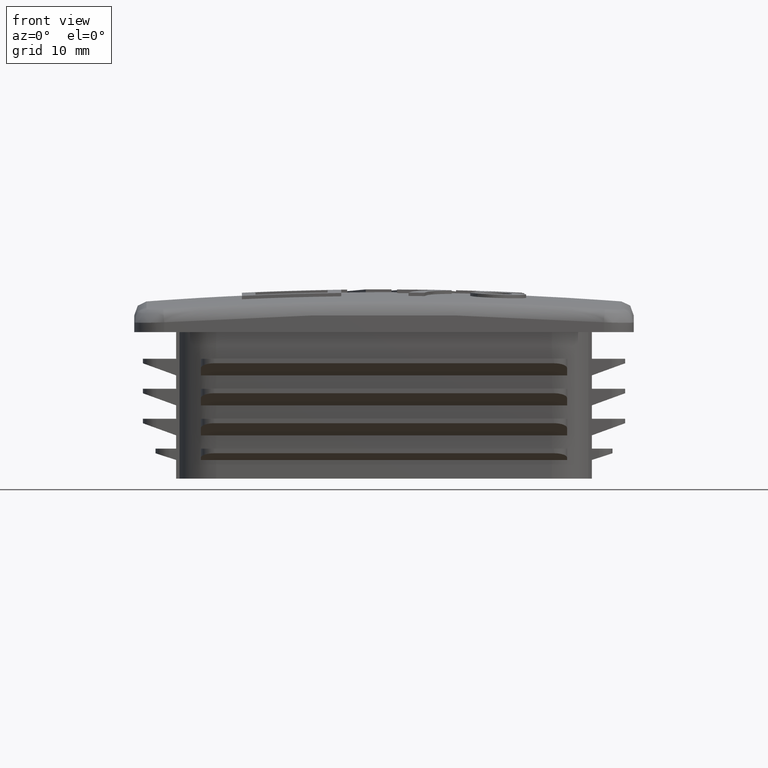
[diagram: clean part render]
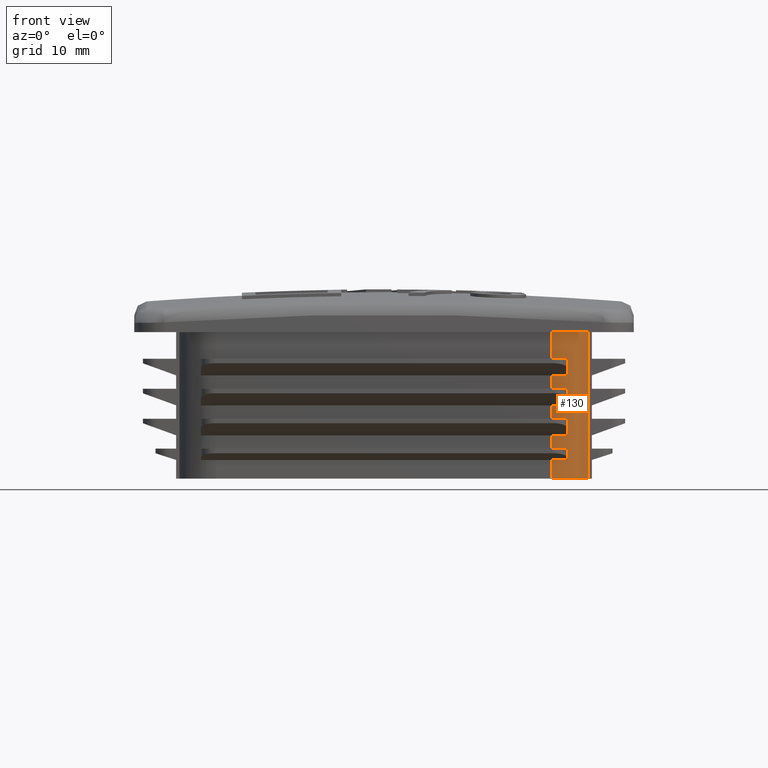
[diagram: same view with one face highlighted and labeled with its STEP entity id]
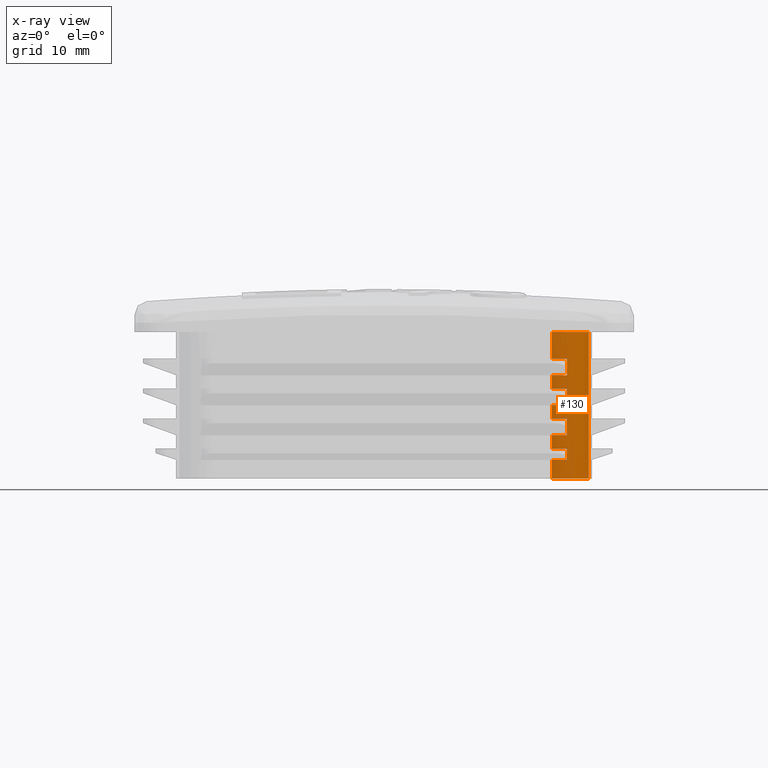
[diagram: x-ray of the same camera — body ghosted, the highlighted face saturated]
A machine part, front view. The second image highlights one B-rep face of the part: STEP entity #130.
The next image is the same camera in x-ray: the body ghosted, the highlighted face saturated — about 0% of this face is hidden behind the body in this view.
In plain terms, the highlighted cylindrical surface (partial cylindrical patch) has radius 6 mm, axis along (0, 0, -1).
Its self-contained STEP definition (entity closure, byte-faithful):
#130 = ADVANCED_FACE( '', ( #448 ), #449, .T. );
#448 = FACE_OUTER_BOUND( '', #2968, .T. );
#449 = CYLINDRICAL_SURFACE( '', #2969, 6.00000000000000 );
#2968 = EDGE_LOOP( '', ( #3984, #3985, #3986, #3987, #3988, #3989, #3990, #3991, #3992, #3993, #3994, #3995, #3996, #3997, #3998, #3999, #4000, #4001, #4002, #4003 ) );
#2969 = AXIS2_PLACEMENT_3D( '', #4004, #4005, #4006 );
#3984 = ORIENTED_EDGE( '', *, *, #5804, .F. );
#3985 = ORIENTED_EDGE( '', *, *, #5767, .F. );
#3986 = ORIENTED_EDGE( '', *, *, #5805, .F. );
#3987 = ORIENTED_EDGE( '', *, *, #5806, .F. );
#3988 = ORIENTED_EDGE( '', *, *, #5807, .T. );
#3989 = ORIENTED_EDGE( '', *, *, #5808, .F. );
#3990 = ORIENTED_EDGE( '', *, *, #5809, .F. );
#3991 = ORIENTED_EDGE( '', *, *, #5810, .F. );
#3992 = ORIENTED_EDGE( '', *, *, #5811, .T. );
#3993 = ORIENTED_EDGE( '', *, *, #5812, .F. );
#3994 = ORIENTED_EDGE( '', *, *, #5813, .F. );
#3995 = ORIENTED_EDGE( '', *, *, #5814, .F. );
#3996 = ORIENTED_EDGE( '', *, *, #5815, .T. );
#3997 = ORIENTED_EDGE( '', *, *, #5816, .F. );
#3998 = ORIENTED_EDGE( '', *, *, #5817, .F. );
#3999 = ORIENTED_EDGE( '', *, *, #5818, .F. );
#4000 = ORIENTED_EDGE( '', *, *, #5819, .T. );
#4001 = ORIENTED_EDGE( '', *, *, #5820, .F. );
#4002 = ORIENTED_EDGE( '', *, *, #5803, .F. );
#4003 = ORIENTED_EDGE( '', *, *, #5557, .T. );
#4004 = CARTESIAN_POINT( '', ( 25.2000000000000, -25.2000000000000, 0.000000000000000 ) );
#4005 = DIRECTION( '', ( 0.000000000000000, 0.000000000000000, -1.00000000000000 ) );
#4006 = DIRECTION( '', ( 0.000000000000000, -1.00000000000000, 0.000000000000000 ) );
#5557 = EDGE_CURVE( '', #6251, #6249, #6252, .T. );
#5767 = EDGE_CURVE( '', #6624, #6626, #6627, .T. );
#5803 = EDGE_CURVE( '', #6251, #6680, #6684, .T. );
#5804 = EDGE_CURVE( '', #6626, #6249, #6685, .T. );
#5805 = EDGE_CURVE( '', #6686, #6624, #6687, .T. );
#5806 = EDGE_CURVE( '', #6688, #6686, #6689, .F. );
#5807 = EDGE_CURVE( '', #6688, #6690, #6691, .F. );
#5808 = EDGE_CURVE( '', #6692, #6690, #6693, .F. );
#5809 = EDGE_CURVE( '', #6694, #6692, #6695, .T. );
#5810 = EDGE_CURVE( '', #6696, #6694, #6697, .F. );
#5811 = EDGE_CURVE( '', #6696, #6698, #6699, .F. );
#5812 = EDGE_CURVE( '', #6700, #6698, #6701, .F. );
#5813 = EDGE_CURVE( '', #6702, #6700, #6703, .T. );
#5814 = EDGE_CURVE( '', #6704, #6702, #6705, .F. );
#5815 = EDGE_CURVE( '', #6704, #6706, #6707, .F. );
#5816 = EDGE_CURVE( '', #6708, #6706, #6709, .F. );
#5817 = EDGE_CURVE( '', #6710, #6708, #6711, .T. );
#5818 = EDGE_CURVE( '', #6712, #6710, #6713, .F. );
#5819 = EDGE_CURVE( '', #6712, #6714, #6715, .F. );
#5820 = EDGE_CURVE( '', #6680, #6714, #6716, .F. );
#6249 = VERTEX_POINT( '', #7367 );
#6251 = VERTEX_POINT( '', #7370 );
#6252 = CIRCLE( '', #7371, 6.00000000000000 );
#6624 = VERTEX_POINT( '', #9206 );
#6626 = VERTEX_POINT( '', #9209 );
#6627 = CIRCLE( '', #9210, 6.00000000000000 );
#6680 = VERTEX_POINT( '', #9434 );
#6684 = LINE( '', #9440, #9441 );
#6685 = LINE( '', #9442, #9443 );
#6686 = VERTEX_POINT( '', #9444 );
#6687 = LINE( '', #9445, #9446 );
#6688 = VERTEX_POINT( '', #9447 );
#6689 = CIRCLE( '', #9448, 6.00000000000000 );
#6690 = VERTEX_POINT( '', #9449 );
#6691 = LINE( '', #9450, #9451 );
#6692 = VERTEX_POINT( '', #9452 );
#6693 = CIRCLE( '', #9453, 6.00000000000000 );
#6694 = VERTEX_POINT( '', #9454 );
#6695 = LINE( '', #9455, #9456 );
#6696 = VERTEX_POINT( '', #9457 );
#6697 = CIRCLE( '', #9458, 6.00000000000000 );
#6698 = VERTEX_POINT( '', #9459 );
#6699 = LINE( '', #9460, #9461 );
#6700 = VERTEX_POINT( '', #9462 );
#6701 = CIRCLE( '', #9463, 6.00000000000000 );
#6702 = VERTEX_POINT( '', #9464 );
#6703 = LINE( '', #9465, #9466 );
#6704 = VERTEX_POINT( '', #9467 );
#6705 = CIRCLE( '', #9468, 6.00000000000000 );
#6706 = VERTEX_POINT( '', #9469 );
#6707 = LINE( '', #9470, #9471 );
#6708 = VERTEX_POINT( '', #9472 );
#6709 = CIRCLE( '', #9473, 6.00000000000000 );
#6710 = VERTEX_POINT( '', #9474 );
#6711 = LINE( '', #9475, #9476 );
#6712 = VERTEX_POINT( '', #9477 );
#6713 = CIRCLE( '', #9478, 6.00000000000000 );
#6714 = VERTEX_POINT( '', #9479 );
#6715 = LINE( '', #9480, #9481 );
#6716 = CIRCLE( '', #9482, 6.00000000000000 );
#7367 = CARTESIAN_POINT( '', ( 30.7000000000000, -27.5979157616563, 0.000000000000000 ) );
#7370 = CARTESIAN_POINT( '', ( 25.2000000000000, -31.2000000000000, 0.000000000000000 ) );
#7371 = AXIS2_PLACEMENT_3D( '', #10595, #10596, #10597 );
#9206 = CARTESIAN_POINT( '', ( 25.2000000000000, -31.2000000000000, 22.0000000000000 ) );
#9209 = CARTESIAN_POINT( '', ( 30.7000000000000, -27.5979157616563, 22.0000000000000 ) );
#9210 = AXIS2_PLACEMENT_3D( '', #10777, #10778, #10779 );
#9434 = CARTESIAN_POINT( '', ( 25.2000000000000, -31.2000000000000, 2.79999999999999 ) );
#9440 = CARTESIAN_POINT( '', ( 25.2000000000000, -31.2000000000000, 0.000000000000000 ) );
#9441 = VECTOR( '', #10805, 1000.00000000000 );
#9442 = CARTESIAN_POINT( '', ( 30.7000000000000, -27.5979157616563, 22.0000000000000 ) );
#9443 = VECTOR( '', #10806, 1000.00000000000 );
#9444 = CARTESIAN_POINT( '', ( 25.2000000000000, -31.2000000000000, 18.0000000000000 ) );
#9445 = CARTESIAN_POINT( '', ( 25.2000000000000, -31.2000000000000, 0.000000000000000 ) );
#9446 = VECTOR( '', #10807, 1000.00000000000 );
#9447 = CARTESIAN_POINT( '', ( 27.5000000000000, -30.7416604009990, 18.0000000000000 ) );
#9448 = AXIS2_PLACEMENT_3D( '', #10808, #10809, #10810 );
#9449 = CARTESIAN_POINT( '', ( 27.5000000000000, -30.7416604009990, 15.5000000000000 ) );
#9450 = CARTESIAN_POINT( '', ( 27.5000000000000, -30.7416604009990, 0.000000000000000 ) );
#9451 = VECTOR( '', #10811, 1000.00000000000 );
#9452 = CARTESIAN_POINT( '', ( 25.2000000000000, -31.2000000000000, 15.5000000000000 ) );
#9453 = AXIS2_PLACEMENT_3D( '', #10812, #10813, #10814 );
#9454 = CARTESIAN_POINT( '', ( 25.2000000000000, -31.2000000000000, 13.5000000000000 ) );
#9455 = CARTESIAN_POINT( '', ( 25.2000000000000, -31.2000000000000, 0.000000000000000 ) );
#9456 = VECTOR( '', #10815, 1000.00000000000 );
#9457 = CARTESIAN_POINT( '', ( 27.5000000000000, -30.7416604009990, 13.5000000000000 ) );
#9458 = AXIS2_PLACEMENT_3D( '', #10816, #10817, #10818 );
#9459 = CARTESIAN_POINT( '', ( 27.5000000000000, -30.7416604009990, 11.0000000000000 ) );
#9460 = CARTESIAN_POINT( '', ( 27.5000000000000, -30.7416604009990, 0.000000000000000 ) );
#9461 = VECTOR( '', #10819, 1000.00000000000 );
#9462 = CARTESIAN_POINT( '', ( 25.2000000000000, -31.2000000000000, 11.0000000000000 ) );
#9463 = AXIS2_PLACEMENT_3D( '', #10820, #10821, #10822 );
#9464 = CARTESIAN_POINT( '', ( 25.2000000000000, -31.2000000000000, 9.00000000000000 ) );
#9465 = CARTESIAN_POINT( '', ( 25.2000000000000, -31.2000000000000, 0.000000000000000 ) );
#9466 = VECTOR( '', #10823, 1000.00000000000 );
#9467 = CARTESIAN_POINT( '', ( 27.5000000000000, -30.7416604009990, 9.00000000000000 ) );
#9468 = AXIS2_PLACEMENT_3D( '', #10824, #10825, #10826 );
#9469 = CARTESIAN_POINT( '', ( 27.5000000000000, -30.7416604009990, 6.49999999999999 ) );
#9470 = CARTESIAN_POINT( '', ( 27.5000000000000, -30.7416604009990, 0.000000000000000 ) );
#9471 = VECTOR( '', #10827, 1000.00000000000 );
#9472 = CARTESIAN_POINT( '', ( 25.2000000000000, -31.2000000000000, 6.49999999999998 ) );
#9473 = AXIS2_PLACEMENT_3D( '', #10828, #10829, #10830 );
#9474 = CARTESIAN_POINT( '', ( 25.2000000000000, -31.2000000000000, 4.50000000000000 ) );
#9475 = CARTESIAN_POINT( '', ( 25.2000000000000, -31.2000000000000, 0.000000000000000 ) );
#9476 = VECTOR( '', #10831, 1000.00000000000 );
#9477 = CARTESIAN_POINT( '', ( 27.5000000000000, -30.7416604009990, 4.50000000000000 ) );
#9478 = AXIS2_PLACEMENT_3D( '', #10832, #10833, #10834 );
#9479 = CARTESIAN_POINT( '', ( 27.5000000000000, -30.7416604009990, 2.80000000000000 ) );
#9480 = CARTESIAN_POINT( '', ( 27.5000000000000, -30.7416604009990, 0.000000000000000 ) );
#9481 = VECTOR( '', #10835, 1000.00000000000 );
#9482 = AXIS2_PLACEMENT_3D( '', #10836, #10837, #10838 );
#10595 = CARTESIAN_POINT( '', ( 25.2000000000000, -25.2000000000000, 0.000000000000000 ) );
#10596 = DIRECTION( '', ( 0.000000000000000, 0.000000000000000, 1.00000000000000 ) );
#10597 = DIRECTION( '', ( 0.000000000000000, -1.00000000000000, 0.000000000000000 ) );
#10777 = CARTESIAN_POINT( '', ( 25.2000000000000, -25.2000000000000, 22.0000000000000 ) );
#10778 = DIRECTION( '', ( 0.000000000000000, 0.000000000000000, 1.00000000000000 ) );
#10779 = DIRECTION( '', ( 0.000000000000000, -1.00000000000000, 0.000000000000000 ) );
#10805 = DIRECTION( '', ( 0.000000000000000, 0.000000000000000, 1.00000000000000 ) );
#10806 = DIRECTION( '', ( 0.000000000000000, 0.000000000000000, -1.00000000000000 ) );
#10807 = DIRECTION( '', ( 0.000000000000000, 0.000000000000000, 1.00000000000000 ) );
#10808 = CARTESIAN_POINT( '', ( 25.2000000000000, -25.2000000000000, 18.0000000000000 ) );
#10809 = DIRECTION( '', ( 1.02385407644591E-031, 6.12303176911189E-017, 1.00000000000000 ) );
#10810 = DIRECTION( '', ( 0.000000000000000, -1.00000000000000, 6.12303176911189E-017 ) );
#10811 = DIRECTION( '', ( 0.000000000000000, 0.000000000000000, 1.00000000000000 ) );
#10812 = CARTESIAN_POINT( '', ( 25.2000000000000, -25.2000000000000, 15.5000000000000 ) );
#10813 = DIRECTION( '', ( -1.02385407644591E-031, -6.12303176911189E-017, -1.00000000000000 ) );
#10814 = DIRECTION( '', ( 0.000000000000000, 1.00000000000000, -6.12303176911189E-017 ) );
#10815 = DIRECTION( '', ( 0.000000000000000, 0.000000000000000, 1.00000000000000 ) );
#10816 = CARTESIAN_POINT( '', ( 25.2000000000000, -25.2000000000000, 13.5000000000000 ) );
#10817 = DIRECTION( '', ( 1.02385407644591E-031, 6.12303176911189E-017, 1.00000000000000 ) );
#10818 = DIRECTION( '', ( 0.000000000000000, -1.00000000000000, 6.12303176911189E-017 ) );
#10819 = DIRECTION( '', ( 0.000000000000000, 0.000000000000000, 1.00000000000000 ) );
#10820 = CARTESIAN_POINT( '', ( 25.2000000000000, -25.2000000000000, 11.0000000000000 ) );
#10821 = DIRECTION( '', ( -1.02385407644591E-031, -6.12303176911189E-017, -1.00000000000000 ) );
#10822 = DIRECTION( '', ( 0.000000000000000, 1.00000000000000, -6.12303176911189E-017 ) );
#10823 = DIRECTION( '', ( 0.000000000000000, 0.000000000000000, 1.00000000000000 ) );
#10824 = CARTESIAN_POINT( '', ( 25.2000000000000, -25.2000000000000, 9.00000000000000 ) );
#10825 = DIRECTION( '', ( 1.02385407644591E-031, 6.12303176911189E-017, 1.00000000000000 ) );
#10826 = DIRECTION( '', ( 0.000000000000000, -1.00000000000000, 6.12303176911189E-017 ) );
#10827 = DIRECTION( '', ( 0.000000000000000, 0.000000000000000, 1.00000000000000 ) );
#10828 = CARTESIAN_POINT( '', ( 25.2000000000000, -25.2000000000000, 6.50000000000000 ) );
#10829 = DIRECTION( '', ( -1.02385407644591E-031, -6.12303176911189E-017, -1.00000000000000 ) );
#10830 = DIRECTION( '', ( 0.000000000000000, 1.00000000000000, -6.12303176911189E-017 ) );
#10831 = DIRECTION( '', ( 0.000000000000000, 0.000000000000000, 1.00000000000000 ) );
#10832 = CARTESIAN_POINT( '', ( 25.2000000000000, -25.2000000000000, 4.50000000000000 ) );
#10833 = DIRECTION( '', ( 1.02385407644591E-031, 6.12303176911189E-017, 1.00000000000000 ) );
#10834 = DIRECTION( '', ( 0.000000000000000, -1.00000000000000, 6.12303176911189E-017 ) );
#10835 = DIRECTION( '', ( 0.000000000000000, 0.000000000000000, 1.00000000000000 ) );
#10836 = CARTESIAN_POINT( '', ( 25.2000000000000, -25.2000000000000, 2.80000000000000 ) );
#10837 = DIRECTION( '', ( -1.02385407644591E-031, -6.12303176911189E-017, -1.00000000000000 ) );
#10838 = DIRECTION( '', ( 0.000000000000000, 1.00000000000000, -6.12303176911189E-017 ) );